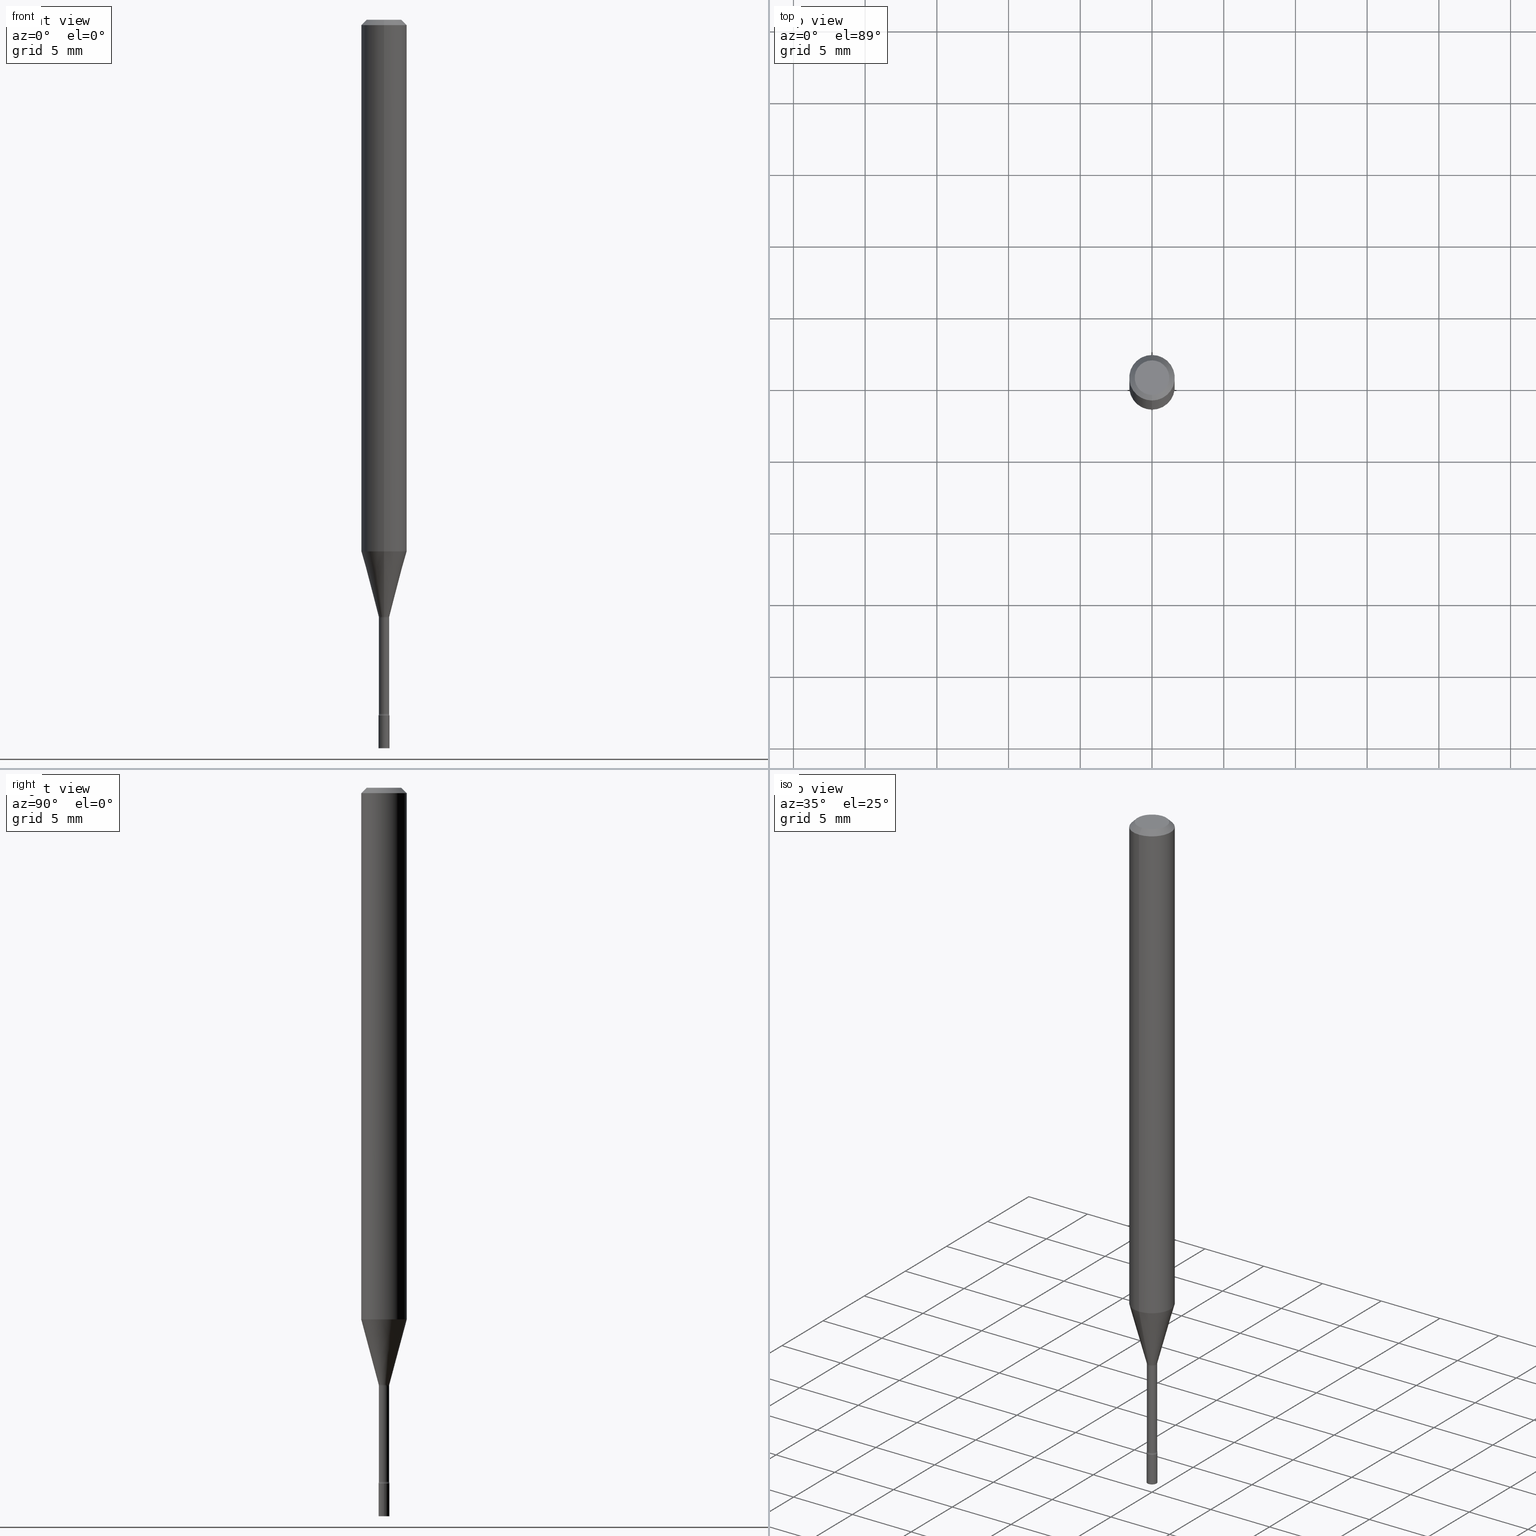
[diagram: canonical four-view strip — front | top / right | iso, engineering-drawing reading convention]
A machine part, canonical four-view strip (front | top / right | iso — engineering-drawing reading convention). The complete STEP part file that produces these views, byte-faithful:
ISO-10303-21;
HEADER;
FILE_DESCRIPTION (( 'STEP AP203' ),
    '1' );
FILE_NAME ('09360.STEP',
    '2024-03-08T23:20:10',
    ( '' ),
    ( '' ),
    'SwSTEP 2.0',
    'SolidWorks 2023',
    '' );
FILE_SCHEMA (( 'CONFIG_CONTROL_DESIGN' ));
ENDSEC;

DATA;
#1 = CARTESIAN_POINT ( 'NONE',  ( 4.658330447976160252E-29, -6.650861294217741787E-15, -1.904882383367231036 ) ) ;
#2 = AXIS2_PLACEMENT_3D ( 'NONE', #482, #123, #68 ) ;
#3 = DIRECTION ( 'NONE',  ( -2.445433538299312121E-29, 3.491531844462969352E-15, 1.000000000000000000 ) ) ;
#4 = ORIENTED_EDGE ( 'NONE', *, *, #83, .F. ) ;
#5 = EDGE_CURVE ( 'NONE', #91, #182, #307, .T. ) ;
#6 = FACE_OUTER_BOUND ( 'NONE', #152, .T. ) ;
#7 = ORIENTED_EDGE ( 'NONE', *, *, #89, .F. ) ;
#8 = DIRECTION ( 'NONE',  ( -2.445468806185136597E-29, 3.491481338843145583E-15, 1.000000000000000000 ) ) ;
#9 = ORIENTED_EDGE ( 'NONE', *, *, #104, .F. ) ;
#10 = DESIGN_CONTEXT ( 'detailed design', #295, 'design' ) ;
#11 = CIRCLE ( 'NONE', #303, 0.06250000000000000000 ) ;
#12 = DIRECTION ( 'NONE',  ( -6.982962677686265922E-15, -1.000000000000000000, 0.000000000000000000 ) ) ;
#13 = AXIS2_PLACEMENT_3D ( 'NONE', #173, #244, #202 ) ;
#14 = ORIENTED_EDGE ( 'NONE', *, *, #316, .F. ) ;
#15 = APPROVAL ( #151, 'UNSPECIFIED' ) ;
#16 = FACE_OUTER_BOUND ( 'NONE', #372, .T. ) ;
#17 = VERTEX_POINT ( 'NONE', #107 ) ;
#18 = DIRECTION ( 'NONE',  ( -2.445433538299312121E-29, 3.491531844462969352E-15, 1.000000000000000000 ) ) ;
#19 = PERSON_AND_ORGANIZATION_ROLE ( 'design_owner' ) ;
#20 = AXIS2_PLACEMENT_3D ( 'NONE', #392, #435, #117 ) ;
#21 = EDGE_LOOP ( 'NONE', ( #330, #310, #445, #9 ) ) ;
#22 = ORGANIZATION ( 'UNSPECIFIED', 'UNSPECIFIED', '' ) ;
#23 = EDGE_CURVE ( 'NONE', #17, #142, #380, .T. ) ;
#24 = EDGE_LOOP ( 'NONE', ( #413, #115, #288, #74 ) ) ;
#25 = APPLICATION_PROTOCOL_DEFINITION ( 'international standard', 'config_control_design', 1994, #251 ) ;
#26 = CARTESIAN_POINT ( 'NONE',  ( 3.668150307448975398E-31, -5.237297766694464998E-17, -0.01500000000000003067 ) ) ;
#27 = DIRECTION ( 'NONE',  ( -1.000000000000000000, 6.982962677686265922E-15, -4.876176775795935793E-29 ) ) ;
#28 = DIRECTION ( 'NONE',  ( -6.982962677686265922E-15, -1.000000000000000000, 0.000000000000000000 ) ) ;
#29 = CIRCLE ( 'NONE', #313, 0.06250000000000000000 ) ;
#30 = VECTOR ( 'NONE', #298, 39.37007874015748143 ) ;
#31 = EDGE_CURVE ( 'NONE', #484, #334, #398, .T. ) ;
#32 = CARTESIAN_POINT ( 'NONE',  ( 4.440892098500985093E-16, 0.06249999999999995143, -0.01500000000000024751 ) ) ;
#33 = DIRECTION ( 'NONE',  ( -6.982962677686265922E-15, -1.000000000000000000, 3.491531844462969352E-15 ) ) ;
#34 = EDGE_CURVE ( 'NONE', #299, #223, #480, .T. ) ;
#35 = DIRECTION ( 'NONE',  ( -2.445433538299312121E-29, 3.491531844462969352E-15, 1.000000000000000000 ) ) ;
#36 = AXIS2_PLACEMENT_3D ( 'NONE', #185, #504, #28 ) ;
#37 = DATE_TIME_ROLE ( 'creation_date' ) ;
#38 = CYLINDRICAL_SURFACE ( 'NONE', #389, 0.01410000000000004479 ) ;
#39 = ORIENTED_EDGE ( 'NONE', *, *, #23, .F. ) ;
#40 = CARTESIAN_POINT ( 'NONE',  ( 1.033839680531413325E-16, 0.01409999999999344243, -1.904882383367231036 ) ) ;
#41 = FACE_OUTER_BOUND ( 'NONE', #285, .T. ) ;
#42 = VERTEX_POINT ( 'NONE', #420 ) ;
#43 = ADVANCED_FACE ( 'NONE', ( #258 ), #506, .F. ) ;
#44 = CIRCLE ( 'NONE', #70, 0.01409999999999999795 ) ;
#45 = DIRECTION ( 'NONE',  ( 1.000000000000000000, -6.982962677686268288E-15, 0.000000000000000000 ) ) ;
#46 = ORIENTED_EDGE ( 'NONE', *, *, #34, .T. ) ;
#47 = DIMENSIONAL_EXPONENTS ( 1.000000000000000000, 0.000000000000000000, 0.000000000000000000, 0.000000000000000000, 0.000000000000000000, 0.000000000000000000, 0.000000000000000000 ) ;
#48 = LINE ( 'NONE', #410, #181 ) ;
#49 = ORIENTED_EDGE ( 'NONE', *, *, #128, .F. ) ;
#50 = EDGE_CURVE ( 'NONE', #206, #142, #339, .T. ) ;
#51 = CARTESIAN_POINT ( 'NONE',  ( 4.015398123285219100E-29, -5.732924329280835832E-15, -1.641974787463811092 ) ) ;
#52 = EDGE_LOOP ( 'NONE', ( #409, #427, #379, #462 ) ) ;
#53 = AXIS2_PLACEMENT_3D ( 'NONE', #509, #346, #430 ) ;
#54 = LINE ( 'NONE', #335, #69 ) ;
#55 = ORIENTED_EDGE ( 'NONE', *, *, #138, .T. ) ;
#56 = CARTESIAN_POINT ( 'NONE',  ( -2.032042139206239914E-16, -0.02910000000000668649, -1.904882383367231036 ) ) ;
#57 = EDGE_LOOP ( 'NONE', ( #388, #487 ) ) ;
#58 = MANIFOLD_SOLID_BREP ( 'Body-Move/Copy2[1]', #109 ) ;
#59 = VERTEX_POINT ( 'NONE', #63 ) ;
#60 = CC_DESIGN_DATE_AND_TIME_ASSIGNMENT ( #71, #194, ( #507 ) ) ;
#61 = DIRECTION ( 'NONE',  ( -2.445433538299312121E-29, 3.491531844462969352E-15, 1.000000000000000000 ) ) ;
#62 = AXIS2_PLACEMENT_3D ( 'NONE', #232, #227, #433 ) ;
#63 = CARTESIAN_POINT ( 'NONE',  ( -4.364351673553912750E-16, -0.06250000000000005551, -0.01499999999999981209 ) ) ;
#64 = ORIENTED_EDGE ( 'NONE', *, *, #510, .F. ) ;
#65 = CARTESIAN_POINT ( 'NONE',  ( 0.000000000000000000, 0.000000000000000000, 0.000000000000000000 ) ) ;
#66 = EDGE_CURVE ( 'NONE', #182, #59, #29, .T. ) ;
#67 = DIRECTION ( 'NONE',  ( -6.982962677686265922E-15, -1.000000000000000000, 3.491531844462969352E-15 ) ) ;
#68 = DIRECTION ( 'NONE',  ( 1.000000000000000000, -6.982962677686267499E-15, 4.876176775795936353E-29 ) ) ;
#69 = VECTOR ( 'NONE', #451, 39.37007874015748143 ) ;
#70 = AXIS2_PLACEMENT_3D ( 'NONE', #183, #105, #222 ) ;
#71 = DATE_AND_TIME ( #319, #148 ) ;
#72 = DIRECTION ( 'NONE',  ( -6.982962677686265133E-15, -1.000000000000000000, 0.000000000000000000 ) ) ;
#73 = DIRECTION ( 'NONE',  ( -2.445433538299312121E-29, 3.491531844462969352E-15, 1.000000000000000000 ) ) ;
#74 = ORIENTED_EDGE ( 'NONE', *, *, #425, .F. ) ;
#75 = COORDINATED_UNIVERSAL_TIME_OFFSET ( 5, 0, .BEHIND. ) ;
#76 = CYLINDRICAL_SURFACE ( 'NONE', #352, 0.06250000000000000000 ) ;
#77 = TOROIDAL_SURFACE ( 'NONE', #146, 0.02910000000000000087, 0.01500000000000006189 ) ;
#78 = CIRCLE ( 'NONE', #439, 0.06250000000000000000 ) ;
#79 = LOCAL_TIME ( 18, 20, 10.00000000000000000, #309 ) ;
#80 = DIRECTION ( 'NONE',  ( -6.982962677686265922E-15, -1.000000000000000000, 3.491531844462969352E-15 ) ) ;
#81 = ORIENTED_EDGE ( 'NONE', *, *, #332, .T. ) ;
#82 = DIRECTION ( 'NONE',  ( 2.445433538299312121E-29, -3.491531844462969352E-15, -1.000000000000000000 ) ) ;
#83 = EDGE_CURVE ( 'NONE', #484, #182, #190, .T. ) ;
#84 = DIRECTION ( 'NONE',  ( -2.445468806185136877E-29, 3.491481338843145188E-15, 1.000000000000000000 ) ) ;
#85 = VERTEX_POINT ( 'NONE', #345 ) ;
#86 = CC_DESIGN_APPROVAL ( #15, ( #377 ) ) ;
#87 = DIRECTION ( 'NONE',  ( -2.445468806185136597E-29, 3.491481338843145583E-15, 1.000000000000000000 ) ) ;
#88 = ORIENTED_EDGE ( 'NONE', *, *, #463, .T. ) ;
#89 = EDGE_CURVE ( 'NONE', #411, #125, #219, .T. ) ;
#90 = CARTESIAN_POINT ( 'NONE',  ( 4.670845419813611528E-29, -6.668729357190407901E-15, -1.910000000000000142 ) ) ;
#91 = VERTEX_POINT ( 'NONE', #338 ) ;
#92 = DIRECTION ( 'NONE',  ( -2.445433538299312121E-29, 3.491531844462969352E-15, 1.000000000000000000 ) ) ;
#93 = ORIENTED_EDGE ( 'NONE', *, *, #66, .T. ) ;
#94 = DIRECTION ( 'NONE',  ( -6.982962677686265922E-15, -1.000000000000000000, 0.000000000000000000 ) ) ;
#95 = ORIENTED_EDGE ( 'NONE', *, *, #31, .F. ) ;
#96 = LINE ( 'NONE', #254, #197 ) ;
#97 = EDGE_LOOP ( 'NONE', ( #349, #321, #55, #245 ) ) ;
#98 = EDGE_CURVE ( 'NONE', #247, #42, #120, .T. ) ;
#99 = DIRECTION ( 'NONE',  ( -2.445433538299312121E-29, 3.491531844462969352E-15, 1.000000000000000000 ) ) ;
#100 = CARTESIAN_POINT ( 'NONE',  ( 4.440892098500625669E-16, 0.06250000000000000000, -2.182207402789355845E-16 ) ) ;
#101 = DIRECTION ( 'NONE',  ( -2.445433538299312121E-29, 3.491531844462969352E-15, 1.000000000000000000 ) ) ;
#102 = CIRCLE ( 'NONE', #20, 0.01500000000000006189 ) ;
#103 = EDGE_LOOP ( 'NONE', ( #467, #328, #241, #134 ) ) ;
#104 = EDGE_CURVE ( 'NONE', #91, #85, #276, .T. ) ;
#105 = DIRECTION ( 'NONE',  ( -2.445433538299312121E-29, 3.491531844462969352E-15, 1.000000000000000000 ) ) ;
#106 = CARTESIAN_POINT ( 'NONE',  ( 4.015340214305888329E-29, -5.733007258235211804E-15, -1.641974787463811092 ) ) ;
#107 = CARTESIAN_POINT ( 'NONE',  ( -9.845977375533618088E-17, -0.01410000000000573121, -1.641974787463811092 ) ) ;
#108 = CALENDAR_DATE ( 2024, 8, 3 ) ;
#109 = CLOSED_SHELL ( 'NONE', ( #248, #116, #243, #455 ) ) ;
#110 = CARTESIAN_POINT ( 'NONE',  ( 1.001865257422209010E-16, 0.01409999999999426643, -1.641974787463811092 ) ) ;
#111 = TOROIDAL_SURFACE ( 'NONE', #165, 0.02910000000000003556, 0.01499999999999994220 ) ;
#112 = LOCAL_TIME ( 18, 20, 10.00000000000000000, #75 ) ;
#113 = APPROVAL_DATE_TIME ( #198, #347 ) ;
#114 = CARTESIAN_POINT ( 'NONE',  ( 0.000000000000000000, 0.000000000000000000, 0.000000000000000000 ) ) ;
#115 = ORIENTED_EDGE ( 'NONE', *, *, #122, .T. ) ;
#116 = ADVANCED_FACE ( 'NONE', ( #470 ), #512, .T. ) ;
#117 = DIRECTION ( 'NONE',  ( -6.982962677686267499E-15, -1.000000000000000000, 0.000000000000000000 ) ) ;
#118 = PERSON_AND_ORGANIZATION_ROLE ( 'creator' ) ;
#119 = FACE_OUTER_BOUND ( 'NONE', #405, .T. ) ;
#120 = CIRCLE ( 'NONE', #36, 0.01499999999999999944 ) ;
#121 = CIRCLE ( 'NONE', #381, 0.01499999999999993873 ) ;
#122 = EDGE_CURVE ( 'NONE', #206, #91, #401, .T. ) ;
#123 = DIRECTION ( 'NONE',  ( -2.445468806185136597E-29, 3.491481338843145583E-15, 1.000000000000000000 ) ) ;
#124 = CARTESIAN_POINT ( 'NONE',  ( -9.845977375533041233E-17, -0.01410000000000674256, -1.904882383367231036 ) ) ;
#125 = VERTEX_POINT ( 'NONE', #40 ) ;
#126 = FACE_OUTER_BOUND ( 'NONE', #97, .T. ) ;
#127 = EDGE_LOOP ( 'NONE', ( #369, #474, #132, #214 ) ) ;
#128 = EDGE_CURVE ( 'NONE', #85, #59, #437, .T. ) ;
#129 = CONICAL_SURFACE ( 'NONE', #360, 0.01461111260566394336, 0.2617993877991499629 ) ;
#130 = CIRCLE ( 'NONE', #499, 0.01461111260566394336 ) ;
#131 = PLANE ( 'NONE',  #242 ) ;
#132 = ORIENTED_EDGE ( 'NONE', *, *, #518, .T. ) ;
#133 = DIRECTION ( 'NONE',  ( -2.445468806185136597E-29, 3.491481338843145583E-15, 1.000000000000000000 ) ) ;
#134 = ORIENTED_EDGE ( 'NONE', *, *, #138, .F. ) ;
#135 = CARTESIAN_POINT ( 'NONE',  ( 3.568789263775920092E-29, -5.095432431713896168E-15, -1.459368740913666640 ) ) ;
#136 = ORIENTED_EDGE ( 'NONE', *, *, #300, .T. ) ;
#137 = LOCAL_TIME ( 18, 20, 10.00000000000000000, #468 ) ;
#138 = EDGE_CURVE ( 'NONE', #291, #17, #102, .T. ) ;
#139 = MECHANICAL_CONTEXT ( 'NONE', #251, 'mechanical' ) ;
#140 = ORIENTED_EDGE ( 'NONE', *, *, #89, .T. ) ;
#141 = APPLICATION_PROTOCOL_DEFINITION ( 'international standard', 'config_control_design', 1994, #295 ) ;
#142 = VERTEX_POINT ( 'NONE', #110 ) ;
#143 = DIRECTION ( 'NONE',  ( 2.438088387897960049E-29, -3.491481338843145188E-15, -1.000000000000000000 ) ) ;
#144 = CARTESIAN_POINT ( 'NONE',  ( 3.568789263775920092E-29, -5.095432431713896168E-15, -1.459368740913666640 ) ) ;
#145 = EDGE_CURVE ( 'NONE', #291, #206, #211, .T. ) ;
#146 = AXIS2_PLACEMENT_3D ( 'NONE', #51, #209, #443 ) ;
#147 = FACE_OUTER_BOUND ( 'NONE', #498, .T. ) ;
#148 = LOCAL_TIME ( 18, 20, 10.00000000000000000, #432 ) ;
#149 = ORIENTED_EDGE ( 'NONE', *, *, #332, .F. ) ;
#150 = ADVANCED_BREP_SHAPE_REPRESENTATION ( '09360', ( #58, #403, #490 ), #353 ) ;
#151 = APPROVAL_STATUS ( 'not_yet_approved' ) ;
#152 = EDGE_LOOP ( 'NONE', ( #327, #366, #167, #49 ) ) ;
#153 = DATE_AND_TIME ( #269, #79 ) ;
#154 = CARTESIAN_POINT ( 'NONE',  ( 0.000000000000000000, 0.000000000000000000, 0.000000000000000000 ) ) ;
#155 = APPROVAL_DATE_TIME ( #229, #450 ) ;
#156 = CC_DESIGN_PERSON_AND_ORGANIZATION_ASSIGNMENT ( #396, #267, ( #362 ) ) ;
#157 = CARTESIAN_POINT ( 'NONE',  ( 2.739537045417059993E-16, 0.01461111260565822224, -1.638092501787273170 ) ) ;
#158 = VECTOR ( 'NONE', #265, 39.37007874015748143 ) ;
#159 = AXIS2_PLACEMENT_3D ( 'NONE', #296, #216, #461 ) ;
#160 = DIRECTION ( 'NONE',  ( -2.445433538299312121E-29, 3.491531844462969352E-15, 1.000000000000000000 ) ) ;
#161 = PERSON_AND_ORGANIZATION ( #429, #22 ) ;
#162 = CARTESIAN_POINT ( 'NONE',  ( -0.01499999999999999944, -6.719264607074335199E-15, -2.000000000000000000 ) ) ;
#163 = ADVANCED_FACE ( 'NONE', ( #394 ), #76, .T. ) ;
#164 = DIRECTION ( 'NONE',  ( -2.445433538299312121E-29, 3.491531844462969352E-15, 1.000000000000000000 ) ) ;
#165 = AXIS2_PLACEMENT_3D ( 'NONE', #1, #520, #80 ) ;
#166 = CARTESIAN_POINT ( 'NONE',  ( 0.01499999999999999944, -7.087707117851585324E-15, -2.000000000000000000 ) ) ;
#167 = ORIENTED_EDGE ( 'NONE', *, *, #469, .F. ) ;
#168 = DIRECTION ( 'NONE',  ( -6.982962677686265922E-15, -1.000000000000000000, 4.370956789862821150E-15 ) ) ;
#169 = ORIENTED_EDGE ( 'NONE', *, *, #385, .T. ) ;
#170 = CARTESIAN_POINT ( 'NONE',  ( 0.000000000000000000, 0.000000000000000000, 0.000000000000000000 ) ) ;
#171 = ORIENTED_EDGE ( 'NONE', *, *, #228, .F. ) ;
#172 = AXIS2_PLACEMENT_3D ( 'NONE', #274, #268, #72 ) ;
#173 = CARTESIAN_POINT ( 'NONE',  ( 0.000000000000000000, 0.000000000000000000, 0.000000000000000000 ) ) ;
#174 = ORIENTED_EDGE ( 'NONE', *, *, #469, .T. ) ;
#175 = CARTESIAN_POINT ( 'NONE',  ( -1.020288540047825728E-16, -0.01461111260566966275, -1.638092501787273170 ) ) ;
#176 = ORIENTED_EDGE ( 'NONE', *, *, #316, .T. ) ;
#177 = ADVANCED_FACE ( 'NONE', ( #201 ), #129, .T. ) ;
#178 = DIRECTION ( 'NONE',  ( -6.982962677686265922E-15, -1.000000000000000000, 3.483106191921935554E-15 ) ) ;
#179 = PRODUCT_DEFINITION_SHAPE ( 'NONE', 'NONE',  #377 ) ;
#180 = DIRECTION ( 'NONE',  ( -6.982962677686265922E-15, -1.000000000000000000, 3.483106191921935554E-15 ) ) ;
#181 = VECTOR ( 'NONE', #84, 39.37007874015748143 ) ;
#182 = VERTEX_POINT ( 'NONE', #32 ) ;
#183 = CARTESIAN_POINT ( 'NONE',  ( 4.015340214305888329E-29, -5.733007258235211804E-15, -1.641974787463811092 ) ) ;
#184 = ADVANCED_FACE ( 'NONE', ( #270 ), #514, .T. ) ;
#185 = CARTESIAN_POINT ( 'NONE',  ( 4.670778058151686594E-29, -6.668825822924270989E-15, -1.910000000000000142 ) ) ;
#186 = DIRECTION ( 'NONE',  ( -6.982962677686265133E-15, -1.000000000000000000, 0.000000000000000000 ) ) ;
#187 = EDGE_LOOP ( 'NONE', ( #46, #292, #363, #149 ) ) ;
#188 = AXIS2_PLACEMENT_3D ( 'NONE', #428, #465, #218 ) ;
#189 = DIRECTION ( 'NONE',  ( -6.982962677686265922E-15, -1.000000000000000000, 3.491531844462969352E-15 ) ) ;
#190 = LINE ( 'NONE', #505, #293 ) ;
#191 = FACE_OUTER_BOUND ( 'NONE', #336, .T. ) ;
#192 = CC_DESIGN_PERSON_AND_ORGANIZATION_ASSIGNMENT ( #519, #118, ( #362 ) ) ;
#193 = DIRECTION ( 'NONE',  ( -6.982962677686265133E-15, -1.000000000000000000, 0.000000000000000000 ) ) ;
#194 = DATE_TIME_ROLE ( 'classification_date' ) ;
#195 = LINE ( 'NONE', #355, #259 ) ;
#196 = VECTOR ( 'NONE', #230, 39.37007874015748854 ) ;
#197 = VECTOR ( 'NONE', #99, 39.37007874015748143 ) ;
#198 = DATE_AND_TIME ( #108, #137 ) ;
#199 = FACE_OUTER_BOUND ( 'NONE', #52, .T. ) ;
#200 = ADVANCED_FACE ( 'NONE', ( #191 ), #226, .T. ) ;
#201 = FACE_OUTER_BOUND ( 'NONE', #21, .T. ) ;
#202 = DIRECTION ( 'NONE',  ( -6.982962677686266711E-15, -1.000000000000000000, 3.491531844462969352E-15 ) ) ;
#203 = AXIS2_PLACEMENT_3D ( 'NONE', #90, #133, #45 ) ;
#204 = UNCERTAINTY_MEASURE_WITH_UNIT (LENGTH_MEASURE( 1.000000000000000082E-05 ), #306, 'distance_accuracy_value', 'NONE');
#205 = DIRECTION ( 'NONE',  ( -6.982962677686265922E-15, -1.000000000000000000, 3.491531844462969352E-15 ) ) ;
#206 = VERTEX_POINT ( 'NONE', #157 ) ;
#207 = DIRECTION ( 'NONE',  ( 6.982962677686265922E-15, 1.000000000000000000, -3.491531844462969352E-15 ) ) ;
#208 = ORIENTED_EDGE ( 'NONE', *, *, #264, .T. ) ;
#209 = DIRECTION ( 'NONE',  ( -2.445433538299312121E-29, 3.491531844462969352E-15, 1.000000000000000000 ) ) ;
#210 = VERTEX_POINT ( 'NONE', #315 ) ;
#211 = CIRCLE ( 'NONE', #172, 0.01461111260566394336 ) ;
#212 = APPROVAL_PERSON_ORGANIZATION ( #511, #15, #231 ) ;
#213 = DIRECTION ( 'NONE',  ( -2.445468806185136597E-29, 3.491481338843145583E-15, 1.000000000000000000 ) ) ;
#214 = ORIENTED_EDGE ( 'NONE', *, *, #434, .F. ) ;
#215 = ADVANCED_FACE ( 'NONE', ( #400 ), #38, .T. ) ;
#216 = DIRECTION ( 'NONE',  ( 2.445433538299312121E-29, -3.491531844462969352E-15, -1.000000000000000000 ) ) ;
#217 = DIRECTION ( 'NONE',  ( 7.105427357601001859E-15, 1.000000000000000000, 0.000000000000000000 ) ) ;
#218 = DIRECTION ( 'NONE',  ( -6.982962677686265922E-15, -1.000000000000000000, 0.000000000000000000 ) ) ;
#219 = CIRCLE ( 'NONE', #188, 0.01410000000000009336 ) ;
#220 = ADVANCED_FACE ( 'NONE', ( #199 ), #111, .F. ) ;
#221 = DIRECTION ( 'NONE',  ( 4.937700262164548042E-15, 0.7071067811865451302, -0.7071067811865499042 ) ) ;
#222 = DIRECTION ( 'NONE',  ( -6.982962677686265922E-15, -1.000000000000000000, 0.000000000000000000 ) ) ;
#223 = VERTEX_POINT ( 'NONE', #162 ) ;
#224 = DIRECTION ( 'NONE',  ( -1.000000000000000000, 6.982962677686265922E-15, -4.883557194083112340E-29 ) ) ;
#225 = ORIENTED_EDGE ( 'NONE', *, *, #272, .T. ) ;
#226 = CONICAL_SURFACE ( 'NONE', #438, 0.06250000000000000000, 0.7853981633974483900 ) ;
#227 = DIRECTION ( 'NONE',  ( -2.438088387897960049E-29, 3.491481338843145188E-15, 1.000000000000000000 ) ) ;
#228 = EDGE_CURVE ( 'NONE', #223, #210, #195, .T. ) ;
#229 = DATE_AND_TIME ( #440, #399 ) ;
#230 = DIRECTION ( 'NONE',  ( 1.839019923739597949E-15, 0.2588190451025246253, 0.9659258262890670910 ) ) ;
#231 = APPROVAL_ROLE ( '' ) ;
#232 = CARTESIAN_POINT ( 'NONE',  ( 4.670845419813611528E-29, -6.668729357190407901E-15, -1.910000000000000142 ) ) ;
#233 = PERSON_AND_ORGANIZATION_ROLE ( 'classification_officer' ) ;
#234 = EDGE_CURVE ( 'NONE', #42, #247, #286, .T. ) ;
#235 = AXIS2_PLACEMENT_3D ( 'NONE', #502, #343, #67 ) ;
#236 = DIRECTION ( 'NONE',  ( -6.982962677686265133E-15, -1.000000000000000000, 0.000000000000000000 ) ) ;
#237 = AXIS2_PLACEMENT_3D ( 'NONE', #301, #61, #189 ) ;
#238 = CYLINDRICAL_SURFACE ( 'NONE', #2, 0.01499999999999999944 ) ;
#239 = CARTESIAN_POINT ( 'NONE',  ( 4.658263266801754421E-29, -6.650957501483205980E-15, -1.904882383367231036 ) ) ;
#240 = CARTESIAN_POINT ( 'NONE',  ( 0.000000000000000000, 0.000000000000000000, 0.000000000000000000 ) ) ;
#241 = ORIENTED_EDGE ( 'NONE', *, *, #434, .T. ) ;
#242 = AXIS2_PLACEMENT_3D ( 'NONE', #412, #82, #207 ) ;
#243 = ADVANCED_FACE ( 'NONE', ( #119 ), #238, .T. ) ;
#244 = DIRECTION ( 'NONE',  ( -2.445433538299312121E-29, 3.491531844462969352E-15, 1.000000000000000000 ) ) ;
#245 = ORIENTED_EDGE ( 'NONE', *, *, #23, .T. ) ;
#246 = LINE ( 'NONE', #489, #407 ) ;
#247 = VERTEX_POINT ( 'NONE', #350 ) ;
#248 = ADVANCED_FACE ( 'NONE', ( #333 ), #361, .T. ) ;
#249 = PLANE ( 'NONE',  #266 ) ;
#250 = ORIENTED_EDGE ( 'NONE', *, *, #234, .F. ) ;
#251 = APPLICATION_CONTEXT ( 'configuration controlled 3d designs of mechanical parts and assemblies' ) ;
#252 = AXIS2_PLACEMENT_3D ( 'NONE', #261, #422, #217 ) ;
#253 = CIRCLE ( 'NONE', #278, 0.01410000000000009336 ) ;
#254 = CARTESIAN_POINT ( 'NONE',  ( -9.845977375537667163E-17, -0.01410000000000004479, 4.923059900692802559E-17 ) ) ;
#255 = ORIENTED_EDGE ( 'NONE', *, *, #83, .T. ) ;
#256 = DIRECTION ( 'NONE',  ( 1.000000000000000000, -6.982962677686268288E-15, 0.000000000000000000 ) ) ;
#257 = CARTESIAN_POINT ( 'NONE',  ( 7.070118086992183171E-46, -1.009454645085733580E-31, -2.891151191092737261E-17 ) ) ;
#258 = FACE_OUTER_BOUND ( 'NONE', #103, .T. ) ;
#259 = VECTOR ( 'NONE', #320, 39.37007874015748143 ) ;
#260 = DIRECTION ( 'NONE',  ( 1.000000000000000000, 0.000000000000000000, 0.000000000000000000 ) ) ;
#261 = CARTESIAN_POINT ( 'NONE',  ( 2.067679361062292935E-16, 0.02909999999999426934, -1.641974787463811092 ) ) ;
#262 = LENGTH_MEASURE_WITH_UNIT ( LENGTH_MEASURE( 0.02539999999999999897 ), #382 );
#263 = DIRECTION ( 'NONE',  ( -2.445468806185136597E-29, 3.491481338843145583E-15, 1.000000000000000000 ) ) ;
#264 = EDGE_CURVE ( 'NONE', #383, #210, #497, .T. ) ;
#265 = DIRECTION ( 'NONE',  ( -2.445433538299312121E-29, 3.491531844462969352E-15, 1.000000000000000000 ) ) ;
#266 = AXIS2_PLACEMENT_3D ( 'NONE', #370, #453, #365 ) ;
#267 = PERSON_AND_ORGANIZATION_ROLE ( 'design_supplier' ) ;
#268 = DIRECTION ( 'NONE',  ( -2.445433538299312121E-29, 3.491531844462969352E-15, 1.000000000000000000 ) ) ;
#269 = CALENDAR_DATE ( 2024, 8, 3 ) ;
#270 = FACE_OUTER_BOUND ( 'NONE', #24, .T. ) ;
#271 = ORIENTED_EDGE ( 'NONE', *, *, #272, .F. ) ;
#272 = EDGE_CURVE ( 'NONE', #223, #299, #331, .T. ) ;
#273 = PERSON_AND_ORGANIZATION_ROLE ( 'creator' ) ;
#274 = CARTESIAN_POINT ( 'NONE',  ( 4.005846342707224215E-29, -5.719452134166278044E-15, -1.638092501787273170 ) ) ;
#275 = PERSON_AND_ORGANIZATION ( #429, #22 ) ;
#276 = CIRCLE ( 'NONE', #348, 0.06250000000000000000 ) ;
#277 = CARTESIAN_POINT ( 'NONE',  ( 1.038181992333134892E-16, 0.01461111260565822224, -1.638092501787273170 ) ) ;
#278 = AXIS2_PLACEMENT_3D ( 'NONE', #239, #3, #12 ) ;
#279 = EDGE_LOOP ( 'NONE', ( #374, #283, #460, #376 ) ) ;
#280 = CARTESIAN_POINT ( 'NONE',  ( 3.668150307448975398E-31, -5.237297766694464998E-17, -0.01500000000000003067 ) ) ;
#281 = DIRECTION ( 'NONE',  ( 1.000000000000000000, -6.982962677686268288E-15, 0.000000000000000000 ) ) ;
#282 = CC_DESIGN_PERSON_AND_ORGANIZATION_ASSIGNMENT ( #275, #273, ( #377 ) ) ;
#283 = ORIENTED_EDGE ( 'NONE', *, *, #104, .T. ) ;
#284 = DIRECTION ( 'NONE',  ( 1.000000000000000000, -6.982962677686268288E-15, 0.000000000000000000 ) ) ;
#285 = EDGE_LOOP ( 'NONE', ( #140, #136, #39, #449 ) ) ;
#286 = CIRCLE ( 'NONE', #457, 0.01499999999999999944 ) ;
#287 = DIRECTION ( 'NONE',  ( -2.445433538299312121E-29, 3.491531844462969352E-15, 1.000000000000000000 ) ) ;
#288 = ORIENTED_EDGE ( 'NONE', *, *, #308, .F. ) ;
#289 = ADVANCED_FACE ( 'NONE', ( #16 ), #249, .F. ) ;
#290 = CARTESIAN_POINT ( 'NONE',  ( 4.005846342707224215E-29, -5.719452134166278044E-15, -1.638092501787273170 ) ) ;
#291 = VERTEX_POINT ( 'NONE', #175 ) ;
#292 = ORIENTED_EDGE ( 'NONE', *, *, #228, .T. ) ;
#293 = VECTOR ( 'NONE', #221, 39.37007874015748143 ) ;
#294 = AXIS2_PLACEMENT_3D ( 'NONE', #368, #492, #329 ) ;
#295 = APPLICATION_CONTEXT ( 'configuration controlled 3d designs of mechanical parts and assemblies' ) ;
#296 = CARTESIAN_POINT ( 'NONE',  ( 3.668150307448975398E-31, -5.237297766694464998E-17, -0.01500000000000003067 ) ) ;
#297 = DIRECTION ( 'NONE',  ( -6.982962677686265922E-15, -1.000000000000000000, 0.000000000000000000 ) ) ;
#298 = DIRECTION ( 'NONE',  ( -1.807323732225328167E-15, -0.2588190451025179084, 0.9659258262890690894 ) ) ;
#299 = VERTEX_POINT ( 'NONE', #166 ) ;
#300 = EDGE_CURVE ( 'NONE', #125, #142, #246, .T. ) ;
#301 = CARTESIAN_POINT ( 'NONE',  ( 4.658330447976160252E-29, -6.650861294217741787E-15, -1.904882383367231036 ) ) ;
#302 = DIRECTION ( 'NONE',  ( -2.445433538299312121E-29, 3.491531844462969352E-15, 1.000000000000000000 ) ) ;
#303 = AXIS2_PLACEMENT_3D ( 'NONE', #135, #414, #168 ) ;
#304 = CC_DESIGN_SECURITY_CLASSIFICATION ( #507, ( #362 ) ) ;
#305 = CIRCLE ( 'NONE', #294, 0.01499999999999993873 ) ;
#306 =( CONVERSION_BASED_UNIT ( 'INCH', #262 ) LENGTH_UNIT ( ) NAMED_UNIT ( #47 ) );
#307 = LINE ( 'NONE', #100, #158 ) ;
#308 = EDGE_CURVE ( 'NONE', #85, #91, #11, .T. ) ;
#309 = COORDINATED_UNIVERSAL_TIME_OFFSET ( 5, 0, .BEHIND. ) ;
#310 = ORIENTED_EDGE ( 'NONE', *, *, #419, .T. ) ;
#311 = APPROVAL_ROLE ( '' ) ;
#312 = DIRECTION ( 'NONE',  ( -6.982962677686265922E-15, -1.000000000000000000, 4.370956789862821150E-15 ) ) ;
#313 = AXIS2_PLACEMENT_3D ( 'NONE', #26, #18, #180 ) ;
#314 = CONICAL_SURFACE ( 'NONE', #159, 0.06250000000000000000, 0.7853981633974483900 ) ;
#315 = CARTESIAN_POINT ( 'NONE',  ( -0.01499999999999999944, -6.719264607074335199E-15, -1.910000000000000142 ) ) ;
#316 = EDGE_CURVE ( 'NONE', #334, #59, #54, .T. ) ;
#317 = PERSON_AND_ORGANIZATION ( #429, #22 ) ;
#318 = DIRECTION ( 'NONE',  ( -6.982962677686265922E-15, -1.000000000000000000, 0.000000000000000000 ) ) ;
#319 = CALENDAR_DATE ( 2024, 8, 3 ) ;
#320 = DIRECTION ( 'NONE',  ( -2.445468806185136877E-29, 3.491481338843145188E-15, 1.000000000000000000 ) ) ;
#321 = ORIENTED_EDGE ( 'NONE', *, *, #145, .F. ) ;
#322 = VECTOR ( 'NONE', #164, 39.37007874015748143 ) ;
#323 = DIRECTION ( 'NONE',  ( -6.982962677686266711E-15, -1.000000000000000000, 3.491531844462969352E-15 ) ) ;
#324 = CIRCLE ( 'NONE', #424, 0.04749999999999999362 ) ;
#325 = CC_DESIGN_PERSON_AND_ORGANIZATION_ASSIGNMENT ( #342, #19, ( #364 ) ) ;
#326 = CARTESIAN_POINT ( 'NONE',  ( -3.773273898774340269E-16, -0.04749999999999999362, 1.369362507010636913E-16 ) ) ;
#327 = ORIENTED_EDGE ( 'NONE', *, *, #308, .T. ) ;
#328 = ORIENTED_EDGE ( 'NONE', *, *, #50, .T. ) ;
#329 = DIRECTION ( 'NONE',  ( 7.105427357601003436E-15, 1.000000000000000000, 0.000000000000000000 ) ) ;
#330 = ORIENTED_EDGE ( 'NONE', *, *, #122, .F. ) ;
#331 = CIRCLE ( 'NONE', #488, 0.01499999999999999944 ) ;
#332 = EDGE_CURVE ( 'NONE', #299, #383, #48, .T. ) ;
#333 = FACE_OUTER_BOUND ( 'NONE', #187, .T. ) ;
#334 = VERTEX_POINT ( 'NONE', #326 ) ;
#335 = CARTESIAN_POINT ( 'NONE',  ( -4.287811248607203282E-16, -0.06250000000000005551, -0.01499999999999981209 ) ) ;
#336 = EDGE_LOOP ( 'NONE', ( #14, #95, #255, #93 ) ) ;
#337 = DIRECTION ( 'NONE',  ( 0.000000000000000000, 0.000000000000000000, 1.000000000000000000 ) ) ;
#338 = CARTESIAN_POINT ( 'NONE',  ( 4.440892098500981149E-16, 0.06249999999999489297, -1.459368740913666862 ) ) ;
#339 = CIRCLE ( 'NONE', #252, 0.01500000000000006189 ) ;
#340 = CIRCLE ( 'NONE', #464, 0.01499999999999999944 ) ;
#341 = ADVANCED_FACE ( 'NONE', ( #6 ), #373, .T. ) ;
#342 = PERSON_AND_ORGANIZATION ( #429, #22 ) ;
#343 = DIRECTION ( 'NONE',  ( -2.445433538299312121E-29, 3.491531844462969352E-15, 1.000000000000000000 ) ) ;
#344 =( NAMED_UNIT ( * ) SI_UNIT ( $, .STERADIAN. ) SOLID_ANGLE_UNIT ( ) );
#345 = CARTESIAN_POINT ( 'NONE',  ( -4.364351673553560228E-16, -0.06250000000000510703, -1.459368740913666196 ) ) ;
#346 = DIRECTION ( 'NONE',  ( -2.445433538299312121E-29, 3.491531844462969352E-15, 1.000000000000000000 ) ) ;
#347 = APPROVAL ( #436, 'UNSPECIFIED' ) ;
#348 = AXIS2_PLACEMENT_3D ( 'NONE', #144, #476, #312 ) ;
#349 = ORIENTED_EDGE ( 'NONE', *, *, #50, .F. ) ;
#350 = CARTESIAN_POINT ( 'NONE',  ( -1.047444401652470240E-16, -0.01500000000000663476, -1.910000000000000142 ) ) ;
#351 = DIRECTION ( 'NONE',  ( 2.445433538299312121E-29, -3.491531844462969352E-15, -1.000000000000000000 ) ) ;
#352 = AXIS2_PLACEMENT_3D ( 'NONE', #154, #517, #33 ) ;
#353 =( GEOMETRIC_REPRESENTATION_CONTEXT ( 3 ) GLOBAL_UNCERTAINTY_ASSIGNED_CONTEXT ( ( #204 ) ) GLOBAL_UNIT_ASSIGNED_CONTEXT ( ( #306, #387, #344 ) ) REPRESENTATION_CONTEXT ( 'NONE', 'WORKASPACE' ) );
#354 = ADVANCED_FACE ( 'NONE', ( #495 ), #131, .F. ) ;
#355 = CARTESIAN_POINT ( 'NONE',  ( -0.01499999999999999944, 1.065814103640150239E-16, -7.378402635382358533E-31 ) ) ;
#356 = APPROVAL_DATE_TIME ( #516, #15 ) ;
#357 = SECURITY_CLASSIFICATION_LEVEL ( 'unclassified' ) ;
#358 = DIRECTION ( 'NONE',  ( -2.445433538299312121E-29, 3.491531844462969352E-15, 1.000000000000000000 ) ) ;
#359 = ADVANCED_FACE ( 'NONE', ( #126 ), #77, .F. ) ;
#360 = AXIS2_PLACEMENT_3D ( 'NONE', #397, #35, #193 ) ;
#361 = CYLINDRICAL_SURFACE ( 'NONE', #431, 0.01499999999999999944 ) ;
#362 = PRODUCT_DEFINITION_FORMATION_WITH_SPECIFIED_SOURCE ( 'ANY', '', #364, .NOT_KNOWN. ) ;
#363 = ORIENTED_EDGE ( 'NONE', *, *, #264, .F. ) ;
#364 = PRODUCT ( '09360', '09360', '', ( #139 ) ) ;
#365 = DIRECTION ( 'NONE',  ( -6.982962677686265922E-15, -1.000000000000000000, 3.491531844462969352E-15 ) ) ;
#366 = ORIENTED_EDGE ( 'NONE', *, *, #5, .T. ) ;
#367 = EDGE_CURVE ( 'NONE', #125, #411, #253, .T. ) ;
#368 = CARTESIAN_POINT ( 'NONE',  ( 2.067679361062359496E-16, 0.02909999999999338463, -1.904882383367231036 ) ) ;
#369 = ORIENTED_EDGE ( 'NONE', *, *, #300, .F. ) ;
#370 = CARTESIAN_POINT ( 'NONE',  ( 1.047444401653407012E-16, 0.01499999999999333117, -1.910000000000000142 ) ) ;
#371 = AXIS2_PLACEMENT_3D ( 'NONE', #240, #408, #205 ) ;
#372 = EDGE_LOOP ( 'NONE', ( #496, #250 ) ) ;
#373 = CYLINDRICAL_SURFACE ( 'NONE', #371, 0.06250000000000000000 ) ;
#374 = ORIENTED_EDGE ( 'NONE', *, *, #5, .F. ) ;
#375 = CARTESIAN_POINT ( 'NONE',  ( 3.668150307448975398E-31, -5.237297766694464998E-17, -0.01500000000000003067 ) ) ;
#376 = ORIENTED_EDGE ( 'NONE', *, *, #66, .F. ) ;
#377 = PRODUCT_DEFINITION ( 'UNKNOWN', '', #362, #10 ) ;
#378 = CARTESIAN_POINT ( 'NONE',  ( 1.047444401653428952E-16, 0.01499999999999301718, -2.000000000000000000 ) ) ;
#379 = ORIENTED_EDGE ( 'NONE', *, *, #234, .T. ) ;
#380 = CIRCLE ( 'NONE', #415, 0.01409999999999999795 ) ;
#381 = AXIS2_PLACEMENT_3D ( 'NONE', #56, #224, #94 ) ;
#382 =( LENGTH_UNIT ( ) NAMED_UNIT ( * ) SI_UNIT ( $, .METRE. ) );
#383 = VERTEX_POINT ( 'NONE', #404 ) ;
#384 = FACE_OUTER_BOUND ( 'NONE', #416, .T. ) ;
#385 = EDGE_CURVE ( 'NONE', #210, #383, #340, .T. ) ;
#386 = CARTESIAN_POINT ( 'NONE',  ( 4.890937612370273194E-29, -6.982962677686291165E-15, -2.000000000000000000 ) ) ;
#387 =( NAMED_UNIT ( * ) PLANE_ANGLE_UNIT ( ) SI_UNIT ( $, .RADIAN. ) );
#388 = ORIENTED_EDGE ( 'NONE', *, *, #31, .T. ) ;
#389 = AXIS2_PLACEMENT_3D ( 'NONE', #114, #73, #323 ) ;
#390 = APPROVAL_PERSON_ORGANIZATION ( #161, #347, #311 ) ;
#391 = PERSON_AND_ORGANIZATION ( #429, #22 ) ;
#392 = CARTESIAN_POINT ( 'NONE',  ( -2.032042139206302037E-16, -0.02910000000000573239, -1.641974787463811092 ) ) ;
#393 = COORDINATED_UNIVERSAL_TIME_OFFSET ( 5, 0, .BEHIND. ) ;
#394 = FACE_OUTER_BOUND ( 'NONE', #279, .T. ) ;
#395 = ADVANCED_FACE ( 'NONE', ( #41 ), #447, .T. ) ;
#396 = PERSON_AND_ORGANIZATION ( #429, #22 ) ;
#397 = CARTESIAN_POINT ( 'NONE',  ( 4.005846342707224215E-29, -5.719452134166278044E-15, -1.638092501787273170 ) ) ;
#398 = CIRCLE ( 'NONE', #53, 0.04749999999999999362 ) ;
#399 = LOCAL_TIME ( 18, 20, 10.00000000000000000, #393 ) ;
#400 = FACE_OUTER_BOUND ( 'NONE', #127, .T. ) ;
#401 = LINE ( 'NONE', #277, #196 ) ;
#402 = EDGE_CURVE ( 'NONE', #125, #42, #305, .T. ) ;
#403 = MANIFOLD_SOLID_BREP ( 'Body-Move/Copy2[2]', #406 ) ;
#404 = CARTESIAN_POINT ( 'NONE',  ( 0.01499999999999999944, -6.773473797355702060E-15, -1.910000000000000142 ) ) ;
#405 = EDGE_LOOP ( 'NONE', ( #171, #225, #81, #452 ) ) ;
#406 = CLOSED_SHELL ( 'NONE', ( #43, #395, #220, #477, #341, #184, #177, #163, #200, #354, #289, #486, #215, #359 ) ) ;
#407 = VECTOR ( 'NONE', #92, 39.37007874015748143 ) ;
#408 = DIRECTION ( 'NONE',  ( -2.445433538299312121E-29, 3.491531844462969352E-15, 1.000000000000000000 ) ) ;
#409 = ORIENTED_EDGE ( 'NONE', *, *, #367, .F. ) ;
#410 = CARTESIAN_POINT ( 'NONE',  ( 0.01499999999999999944, -1.047444401652940105E-16, 7.314265163693904390E-31 ) ) ;
#411 = VERTEX_POINT ( 'NONE', #124 ) ;
#412 = CARTESIAN_POINT ( 'NONE',  ( 3.316907271900976096E-16, 0.04749999999999999362, -1.803035185674547009E-16 ) ) ;
#413 = ORIENTED_EDGE ( 'NONE', *, *, #145, .T. ) ;
#414 = DIRECTION ( 'NONE',  ( -2.445433538299312121E-29, 3.491531844462969352E-15, 1.000000000000000000 ) ) ;
#415 = AXIS2_PLACEMENT_3D ( 'NONE', #106, #302, #297 ) ;
#416 = EDGE_LOOP ( 'NONE', ( #454, #271 ) ) ;
#417 = CC_DESIGN_APPROVAL ( #450, ( #507 ) ) ;
#418 = EDGE_LOOP ( 'NONE', ( #208, #169 ) ) ;
#419 = EDGE_CURVE ( 'NONE', #206, #291, #130, .T. ) ;
#420 = CARTESIAN_POINT ( 'NONE',  ( 1.065814103640614804E-16, 0.01499999999999329647, -1.910000000000000142 ) ) ;
#421 = CARTESIAN_POINT ( 'NONE',  ( -1.020288540047825728E-16, -0.01461111260566966275, -1.638092501787273170 ) ) ;
#422 = DIRECTION ( 'NONE',  ( 1.000000000000000000, -7.105427357601001070E-15, 4.926316127057538414E-29 ) ) ;
#423 = AXIS2_PLACEMENT_3D ( 'NONE', #473, #358, #236 ) ;
#424 = AXIS2_PLACEMENT_3D ( 'NONE', #257, #456, #459 ) ;
#425 = EDGE_CURVE ( 'NONE', #291, #85, #500, .T. ) ;
#426 = PLANE ( 'NONE',  #471 ) ;
#427 = ORIENTED_EDGE ( 'NONE', *, *, #402, .T. ) ;
#428 = CARTESIAN_POINT ( 'NONE',  ( 4.658263266801754421E-29, -6.650957501483205980E-15, -1.904882383367231036 ) ) ;
#429 = PERSON ( 'UNSPECIFIED', 'UNSPECIFIED', 'UNSPECIFIED', ('UNSPECIFIED'), ('UNSPECIFIED'), ('UNSPECIFIED') ) ;
#430 = DIRECTION ( 'NONE',  ( -6.982962677686266711E-15, -1.000000000000000000, 3.491531844462969746E-15 ) ) ;
#431 = AXIS2_PLACEMENT_3D ( 'NONE', #170, #8, #485 ) ;
#432 = COORDINATED_UNIVERSAL_TIME_OFFSET ( 5, 0, .BEHIND. ) ;
#433 = DIRECTION ( 'NONE',  ( 1.000000000000000000, -6.982962677686265922E-15, 4.876176775795935793E-29 ) ) ;
#434 = EDGE_CURVE ( 'NONE', #142, #17, #44, .T. ) ;
#435 = DIRECTION ( 'NONE',  ( -1.000000000000000000, 6.982962677686265922E-15, -4.883557194083112340E-29 ) ) ;
#436 = APPROVAL_STATUS ( 'not_yet_approved' ) ;
#437 = LINE ( 'NONE', #442, #322 ) ;
#438 = AXIS2_PLACEMENT_3D ( 'NONE', #280, #351, #513 ) ;
#439 = AXIS2_PLACEMENT_3D ( 'NONE', #375, #101, #178 ) ;
#440 = CALENDAR_DATE ( 2024, 8, 3 ) ;
#441 = CC_DESIGN_DATE_AND_TIME_ASSIGNMENT ( #153, #37, ( #377 ) ) ;
#442 = CARTESIAN_POINT ( 'NONE',  ( -4.364351673553916201E-16, -0.06250000000000000000, 2.182207402789355845E-16 ) ) ;
#443 = DIRECTION ( 'NONE',  ( -6.982962677686265922E-15, -1.000000000000000000, 3.491531844462969352E-15 ) ) ;
#444 = CARTESIAN_POINT ( 'NONE',  ( 4.890937612370273194E-29, -6.982962677686291165E-15, -2.000000000000000000 ) ) ;
#445 = ORIENTED_EDGE ( 'NONE', *, *, #425, .T. ) ;
#446 = AXIS2_PLACEMENT_3D ( 'NONE', #386, #263, #256 ) ;
#447 = CYLINDRICAL_SURFACE ( 'NONE', #13, 0.01410000000000004479 ) ;
#448 = CC_DESIGN_APPROVAL ( #347, ( #362 ) ) ;
#449 = ORIENTED_EDGE ( 'NONE', *, *, #518, .F. ) ;
#450 = APPROVAL ( #466, 'UNSPECIFIED' ) ;
#451 = DIRECTION ( 'NONE',  ( -4.851104656540964275E-15, -0.7071067811865500152, -0.7071067811865450192 ) ) ;
#452 = ORIENTED_EDGE ( 'NONE', *, *, #385, .F. ) ;
#453 = DIRECTION ( 'NONE',  ( -2.445433538299312121E-29, 3.491531844462969352E-15, 1.000000000000000000 ) ) ;
#454 = ORIENTED_EDGE ( 'NONE', *, *, #34, .F. ) ;
#455 = ADVANCED_FACE ( 'NONE', ( #384 ), #426, .T. ) ;
#456 = DIRECTION ( 'NONE',  ( -2.445433538299312121E-29, 3.491531844462969352E-15, 1.000000000000000000 ) ) ;
#457 = AXIS2_PLACEMENT_3D ( 'NONE', #479, #160, #318 ) ;
#458 = ORIENTED_EDGE ( 'NONE', *, *, #402, .F. ) ;
#459 = DIRECTION ( 'NONE',  ( -6.982962677686266711E-15, -1.000000000000000000, 3.491531844462969746E-15 ) ) ;
#460 = ORIENTED_EDGE ( 'NONE', *, *, #128, .T. ) ;
#461 = DIRECTION ( 'NONE',  ( 6.982962677686265922E-15, 1.000000000000000000, -3.483106191921935554E-15 ) ) ;
#462 = ORIENTED_EDGE ( 'NONE', *, *, #463, .F. ) ;
#463 = EDGE_CURVE ( 'NONE', #411, #247, #121, .T. ) ;
#464 = AXIS2_PLACEMENT_3D ( 'NONE', #483, #87, #284 ) ;
#465 = DIRECTION ( 'NONE',  ( -2.445433538299312121E-29, 3.491531844462969352E-15, 1.000000000000000000 ) ) ;
#466 = APPROVAL_STATUS ( 'not_yet_approved' ) ;
#467 = ORIENTED_EDGE ( 'NONE', *, *, #419, .F. ) ;
#468 = COORDINATED_UNIVERSAL_TIME_OFFSET ( 5, 0, .BEHIND. ) ;
#469 = EDGE_CURVE ( 'NONE', #59, #182, #78, .T. ) ;
#470 = FACE_OUTER_BOUND ( 'NONE', #418, .T. ) ;
#471 = AXIS2_PLACEMENT_3D ( 'NONE', #378, #143, #27 ) ;
#472 = SHAPE_DEFINITION_REPRESENTATION ( #179, #150 ) ;
#473 = CARTESIAN_POINT ( 'NONE',  ( 4.005846342707224215E-29, -5.719452134166278044E-15, -1.638092501787273170 ) ) ;
#474 = ORIENTED_EDGE ( 'NONE', *, *, #367, .T. ) ;
#475 = CALENDAR_DATE ( 2024, 8, 3 ) ;
#476 = DIRECTION ( 'NONE',  ( -2.445433538299312121E-29, 3.491531844462969352E-15, 1.000000000000000000 ) ) ;
#477 = ADVANCED_FACE ( 'NONE', ( #508 ), #314, .T. ) ;
#478 = APPROVAL_ROLE ( '' ) ;
#479 = CARTESIAN_POINT ( 'NONE',  ( 4.670778058151686594E-29, -6.668825822924270989E-15, -1.910000000000000142 ) ) ;
#480 = CIRCLE ( 'NONE', #446, 0.01499999999999999944 ) ;
#481 = APPROVAL_PERSON_ORGANIZATION ( #317, #450, #478 ) ;
#482 = CARTESIAN_POINT ( 'NONE',  ( 0.000000000000000000, 0.000000000000000000, 0.000000000000000000 ) ) ;
#483 = CARTESIAN_POINT ( 'NONE',  ( 4.670845419813611528E-29, -6.668729357190407901E-15, -1.910000000000000142 ) ) ;
#484 = VERTEX_POINT ( 'NONE', #503 ) ;
#485 = DIRECTION ( 'NONE',  ( 1.000000000000000000, -6.982962677686267499E-15, 4.876176775795936353E-29 ) ) ;
#486 = ADVANCED_FACE ( 'NONE', ( #147 ), #515, .F. ) ;
#487 = ORIENTED_EDGE ( 'NONE', *, *, #510, .T. ) ;
#488 = AXIS2_PLACEMENT_3D ( 'NONE', #444, #213, #281 ) ;
#489 = CARTESIAN_POINT ( 'NONE',  ( 1.001865257421744321E-16, 0.01410000000000004479, -4.923059900692802559E-17 ) ) ;
#490 = AXIS2_PLACEMENT_3D ( 'NONE', #65, #337, #260 ) ;
#491 = EDGE_LOOP ( 'NONE', ( #64, #176, #174, #4 ) ) ;
#492 = DIRECTION ( 'NONE',  ( 1.000000000000000000, -7.105427357601001070E-15, 4.926316127057538414E-29 ) ) ;
#493 = ORIENTED_EDGE ( 'NONE', *, *, #98, .T. ) ;
#494 = CC_DESIGN_PERSON_AND_ORGANIZATION_ASSIGNMENT ( #391, #233, ( #507 ) ) ;
#495 = FACE_OUTER_BOUND ( 'NONE', #57, .T. ) ;
#496 = ORIENTED_EDGE ( 'NONE', *, *, #98, .F. ) ;
#497 = CIRCLE ( 'NONE', #203, 0.01499999999999999944 ) ;
#498 = EDGE_LOOP ( 'NONE', ( #458, #7, #88, #493 ) ) ;
#499 = AXIS2_PLACEMENT_3D ( 'NONE', #290, #287, #186 ) ;
#500 = LINE ( 'NONE', #421, #30 ) ;
#501 = PRODUCT_RELATED_PRODUCT_CATEGORY ( 'detail', '', ( #364 ) ) ;
#502 = CARTESIAN_POINT ( 'NONE',  ( 4.015398123285219100E-29, -5.732924329280835832E-15, -1.641974787463811092 ) ) ;
#503 = CARTESIAN_POINT ( 'NONE',  ( 3.840629472727447874E-16, 0.04749999999999999362, -1.947592745229183872E-16 ) ) ;
#504 = DIRECTION ( 'NONE',  ( -2.445433538299312121E-29, 3.491531844462969352E-15, 1.000000000000000000 ) ) ;
#505 = CARTESIAN_POINT ( 'NONE',  ( 4.364351673553919652E-16, 0.06249999999999995143, -0.01500000000000024751 ) ) ;
#506 = TOROIDAL_SURFACE ( 'NONE', #235, 0.02910000000000000087, 0.01500000000000006189 ) ;
#507 = SECURITY_CLASSIFICATION ( '', '', #357 ) ;
#508 = FACE_OUTER_BOUND ( 'NONE', #491, .T. ) ;
#509 = CARTESIAN_POINT ( 'NONE',  ( 7.070118086992183171E-46, -1.009454645085733580E-31, -2.891151191092737261E-17 ) ) ;
#510 = EDGE_CURVE ( 'NONE', #334, #484, #324, .T. ) ;
#511 = PERSON_AND_ORGANIZATION ( #429, #22 ) ;
#512 = PLANE ( 'NONE',  #62 ) ;
#513 = DIRECTION ( 'NONE',  ( 6.982962677686265922E-15, 1.000000000000000000, -3.483106191921935554E-15 ) ) ;
#514 = CONICAL_SURFACE ( 'NONE', #423, 0.01461111260566394336, 0.2617993877991499629 ) ;
#515 = TOROIDAL_SURFACE ( 'NONE', #237, 0.02910000000000003556, 0.01499999999999994220 ) ;
#516 = DATE_AND_TIME ( #475, #112 ) ;
#517 = DIRECTION ( 'NONE',  ( -2.445433538299312121E-29, 3.491531844462969352E-15, 1.000000000000000000 ) ) ;
#518 = EDGE_CURVE ( 'NONE', #411, #17, #96, .T. ) ;
#519 = PERSON_AND_ORGANIZATION ( #429, #22 ) ;
#520 = DIRECTION ( 'NONE',  ( -2.445433538299312121E-29, 3.491531844462969352E-15, 1.000000000000000000 ) ) ;
ENDSEC;
END-ISO-10303-21;
